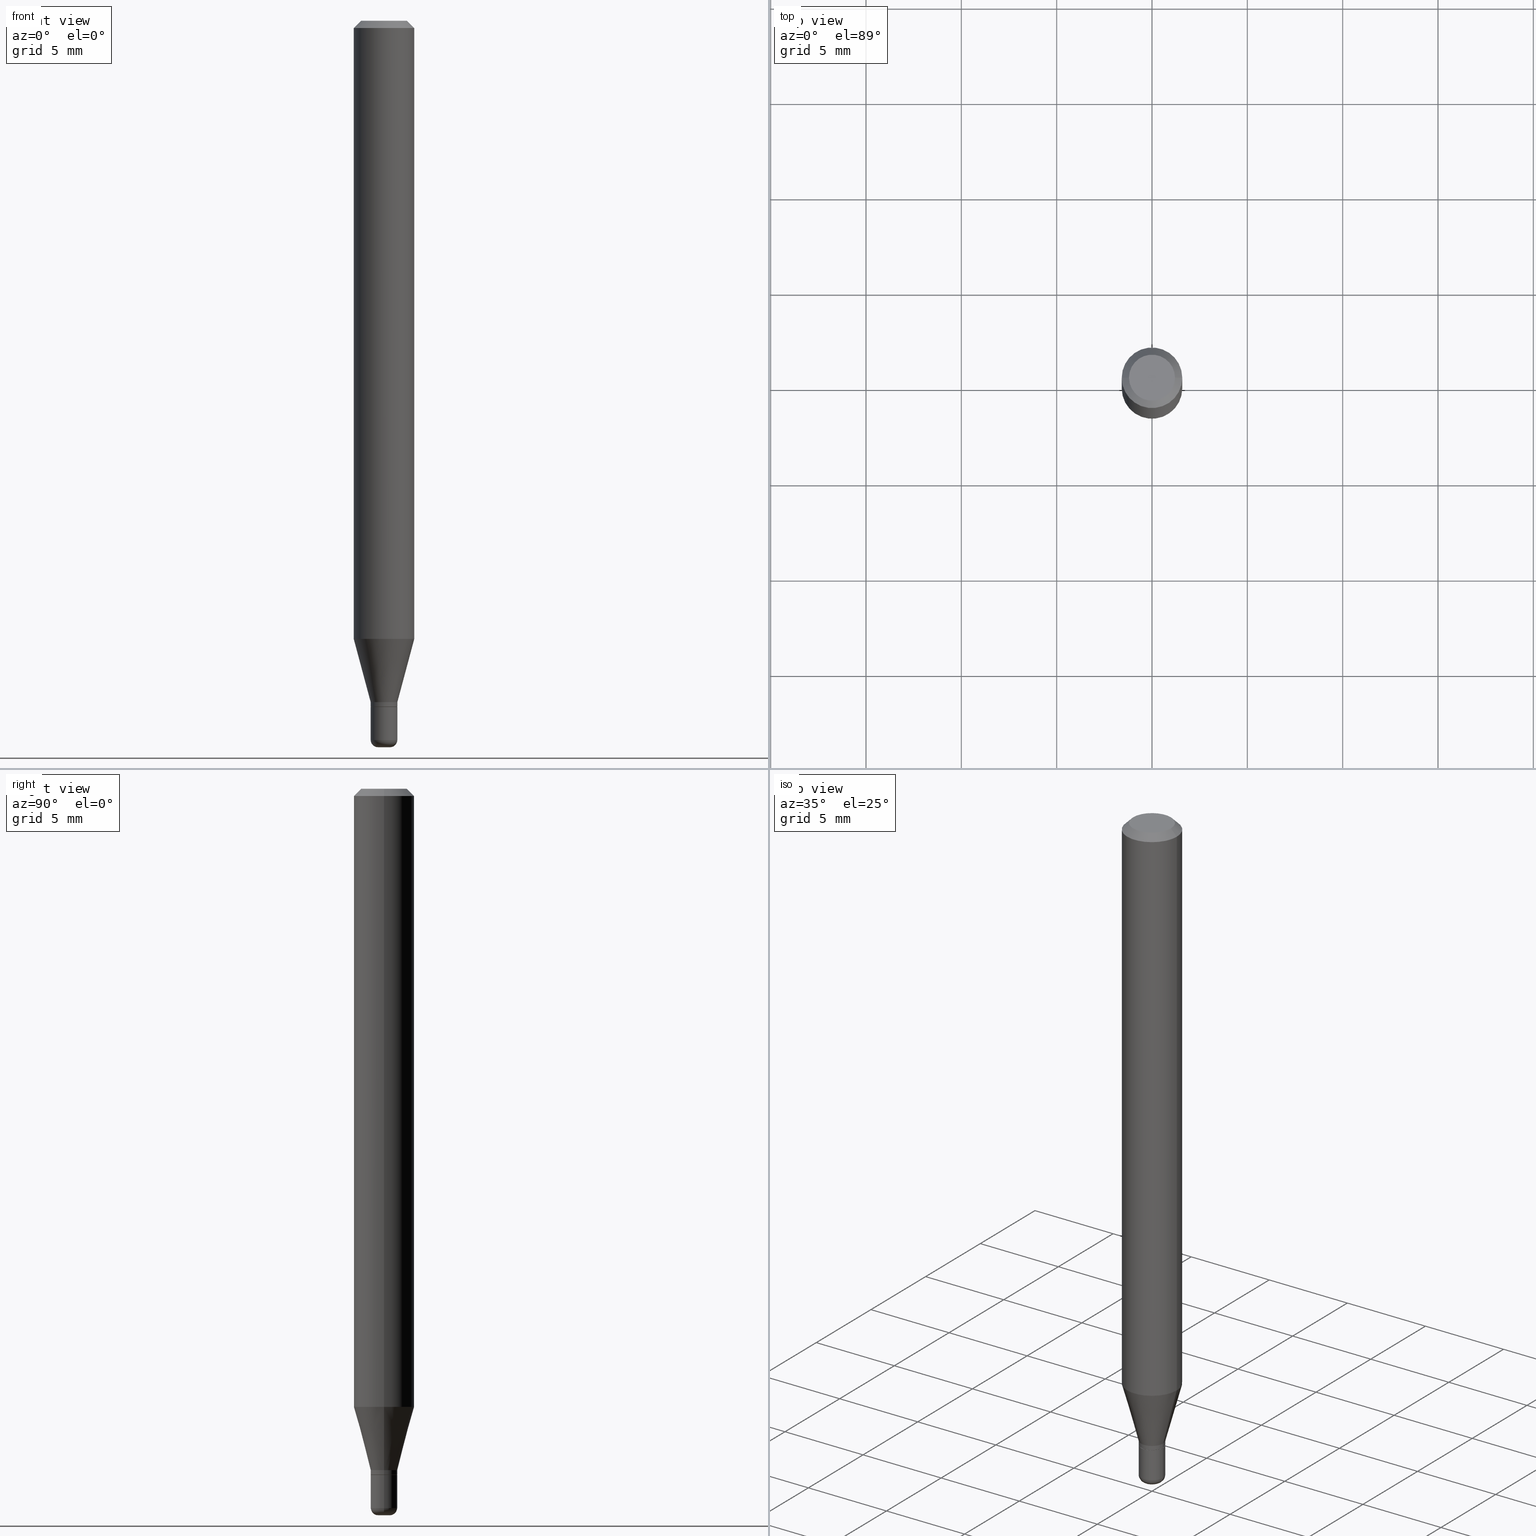
[diagram: canonical four-view strip — front | top / right | iso, engineering-drawing reading convention]
A machine part, canonical four-view strip (front | top / right | iso — engineering-drawing reading convention). The complete STEP part file that produces these views, byte-faithful:
ISO-10303-21;
HEADER;
FILE_DESCRIPTION (( 'STEP AP203' ),
    '1' );
FILE_NAME ('09016.STEP',
    '2024-02-29T21:18:31',
    ( '' ),
    ( '' ),
    'SwSTEP 2.0',
    'SolidWorks 2023',
    '' );
FILE_SCHEMA (( 'CONFIG_CONTROL_DESIGN' ));
ENDSEC;

DATA;
#1 = DIRECTION ( 'NONE',  ( -1.000000000000000000, 6.982962677686266711E-15, 0.000000000000000000 ) ) ;
#2 =( NAMED_UNIT ( * ) SI_UNIT ( $, .STERADIAN. ) SOLID_ANGLE_UNIT ( ) );
#3 = CC_DESIGN_DATE_AND_TIME_ASSIGNMENT ( #13, #175, ( #245 ) ) ;
#4 = FACE_OUTER_BOUND ( 'NONE', #291, .T. ) ;
#5 = CLOSED_SHELL ( 'NONE', ( #335, #90, #210, #117, #183, #457, #252, #28, #133, #385, #142, #111 ) ) ;
#6 = VECTOR ( 'NONE', #182, 39.37007874015748143 ) ;
#7 = APPROVAL_PERSON_ORGANIZATION ( #377, #65, #17 ) ;
#8 = CARTESIAN_POINT ( 'NONE',  ( 3.464006563961245725E-29, -4.945683316471316037E-15, -1.416500000000000092 ) ) ;
#9 = DIRECTION ( 'NONE',  ( 1.000000000000000000, -6.982962677686280121E-15, 0.000000000000000000 ) ) ;
#10 = ADVANCED_FACE ( 'NONE', ( #387 ), #121, .T. ) ;
#11 = ORIENTED_EDGE ( 'NONE', *, *, #514, .F. ) ;
#12 = DIRECTION ( 'NONE',  ( -2.445468806185136597E-29, 3.491481338843145583E-15, 1.000000000000000000 ) ) ;
#13 = DATE_AND_TIME ( #143, #128 ) ;
#14 = VERTEX_POINT ( 'NONE', #147 ) ;
#15 = CC_DESIGN_DATE_AND_TIME_ASSIGNMENT ( #490, #386, ( #63 ) ) ;
#16 = DIRECTION ( 'NONE',  ( -2.445468806185136877E-29, 3.491481338843145188E-15, 1.000000000000000000 ) ) ;
#17 = APPROVAL_ROLE ( '' ) ;
#18 = ORIENTED_EDGE ( 'NONE', *, *, #283, .F. ) ;
#19 = EDGE_CURVE ( 'NONE', #446, #289, #71, .T. ) ;
#20 = DIRECTION ( 'NONE',  ( -2.445468806185136597E-29, 3.491481338843145583E-15, 1.000000000000000000 ) ) ;
#21 = APPROVAL_DATE_TIME ( #493, #65 ) ;
#22 = FACE_OUTER_BOUND ( 'NONE', #485, .T. ) ;
#23 = ORIENTED_EDGE ( 'NONE', *, *, #517, .F. ) ;
#24 = AXIS2_PLACEMENT_3D ( 'NONE', #77, #268, #233 ) ;
#25 = FACE_OUTER_BOUND ( 'NONE', #139, .T. ) ;
#26 = APPROVAL_STATUS ( 'not_yet_approved' ) ;
#27 = EDGE_LOOP ( 'NONE', ( #506, #259, #58, #23 ) ) ;
#28 = ADVANCED_FACE ( 'NONE', ( #349 ), #499, .T. ) ;
#29 = ORIENTED_EDGE ( 'NONE', *, *, #19, .T. ) ;
#30 = ORIENTED_EDGE ( 'NONE', *, *, #33, .T. ) ;
#31 = DIRECTION ( 'NONE',  ( 1.000000000000000000, -6.982962677686262766E-15, 0.000000000000000000 ) ) ;
#32 = AXIS2_PLACEMENT_3D ( 'NONE', #382, #459, #250 ) ;
#33 = EDGE_CURVE ( 'NONE', #221, #96, #202, .T. ) ;
#34 = CARTESIAN_POINT ( 'NONE',  ( -0.01250000000000000069, -5.096031946212059284E-15, -1.485000000000000098 ) ) ;
#35 = DIRECTION ( 'NONE',  ( 2.445468806185136597E-29, -3.491481338843145583E-15, -1.000000000000000000 ) ) ;
#36 = CONICAL_SURFACE ( 'NONE', #113, 0.02699999999999999623, 0.7853981633972775267 ) ;
#37 = FACE_OUTER_BOUND ( 'NONE', #79, .T. ) ;
#38 = VERTEX_POINT ( 'NONE', #162 ) ;
#39 = DIRECTION ( 'NONE',  ( -2.445468806185136597E-29, 3.491481338843145583E-15, 1.000000000000000000 ) ) ;
#40 = CARTESIAN_POINT ( 'NONE',  ( 3.440774610302487541E-29, -4.912514243752305891E-15, -1.407000000000000028 ) ) ;
#41 = DIRECTION ( 'NONE',  ( -2.445468806185136597E-29, 3.491481338843145583E-15, 1.000000000000000000 ) ) ;
#42 = VECTOR ( 'NONE', #296, 39.37007874015748143 ) ;
#43 = DIRECTION ( 'NONE',  ( -2.445468806185136597E-29, 3.491481338843145583E-15, 1.000000000000000000 ) ) ;
#44 = EDGE_CURVE ( 'NONE', #38, #144, #62, .T. ) ;
#45 = CARTESIAN_POINT ( 'NONE',  ( 3.668203209277632395E-31, -5.237222008264614861E-17, -0.01499999999999970281 ) ) ;
#46 = LENGTH_MEASURE_WITH_UNIT ( LENGTH_MEASURE( 0.02539999999999999897 ), #201 );
#47 = CARTESIAN_POINT ( 'NONE',  ( -0.02750000000000000014, -4.870740170327377186E-15, -1.417000000000000259 ) ) ;
#48 = CARTESIAN_POINT ( 'NONE',  ( 0.02699999999999999623, -5.135969049438267025E-15, -1.417000000000000259 ) ) ;
#49 = ORIENTED_EDGE ( 'NONE', *, *, #44, .F. ) ;
#50 = PLANE ( 'NONE',  #330 ) ;
#51 = EDGE_CURVE ( 'NONE', #491, #289, #61, .T. ) ;
#52 = CIRCLE ( 'NONE', #138, 0.06250000000000000000 ) ;
#53 = ORIENTED_EDGE ( 'NONE', *, *, #306, .T. ) ;
#54 = CARTESIAN_POINT ( 'NONE',  ( 0.02749999999999999667, -1.920314736363722951E-16, 1.340948613343882063E-30 ) ) ;
#55 = CALENDAR_DATE ( 2024, 29, 2 ) ;
#56 = ORIENTED_EDGE ( 'NONE', *, *, #284, .F. ) ;
#57 = DIRECTION ( 'NONE',  ( 1.000000000000000000, -6.982962677686265922E-15, 4.876176775795935232E-29 ) ) ;
#58 = ORIENTED_EDGE ( 'NONE', *, *, #44, .T. ) ;
#59 = LINE ( 'NONE', #384, #251 ) ;
#60 = PERSON_AND_ORGANIZATION_ROLE ( 'creator' ) ;
#61 = LINE ( 'NONE', #224, #430 ) ;
#62 = CIRCLE ( 'NONE', #285, 0.01499999999999998730 ) ;
#63 = SECURITY_CLASSIFICATION ( '', '', #505 ) ;
#64 = EDGE_CURVE ( 'NONE', #261, #511, #203, .T. ) ;
#65 = APPROVAL ( #26, 'UNSPECIFIED' ) ;
#66 = ORIENTED_EDGE ( 'NONE', *, *, #359, .F. ) ;
#67 = PERSON ( 'UNSPECIFIED', 'UNSPECIFIED', 'UNSPECIFIED', ('UNSPECIFIED'), ('UNSPECIFIED'), ('UNSPECIFIED') ) ;
#68 = CC_DESIGN_PERSON_AND_ORGANIZATION_ASSIGNMENT ( #380, #180, ( #510 ) ) ;
#69 = ORIENTED_EDGE ( 'NONE', *, *, #51, .T. ) ;
#70 = DIRECTION ( 'NONE',  ( 1.000000000000000000, -6.982962677686265922E-15, 4.876176775795935793E-29 ) ) ;
#71 = CIRCLE ( 'NONE', #415, 0.06250000000000000000 ) ;
#72 = TOROIDAL_SURFACE ( 'NONE', #509, 0.01250000000000000069, 0.01499999999999998557 ) ;
#73 = AXIS2_PLACEMENT_3D ( 'NONE', #278, #482, #328 ) ;
#74 = DIRECTION ( 'NONE',  ( -2.445468806185136597E-29, 3.491481338843145583E-15, 1.000000000000000000 ) ) ;
#75 = DIRECTION ( 'NONE',  ( 1.000000000000000000, -6.982962677686277755E-15, 0.000000000000000000 ) ) ;
#76 = DIRECTION ( 'NONE',  ( 1.000000000000000000, -6.982962677686266711E-15, 0.000000000000000000 ) ) ;
#77 = CARTESIAN_POINT ( 'NONE',  ( 3.465229298364339647E-29, -4.947429057140738329E-15, -1.417000000000000259 ) ) ;
#78 = CIRCLE ( 'NONE', #32, 0.02749999999999998973 ) ;
#79 = EDGE_LOOP ( 'NONE', ( #253, #120 ) ) ;
#80 = AXIS2_PLACEMENT_3D ( 'NONE', #130, #12, #172 ) ;
#81 = AXIS2_PLACEMENT_3D ( 'NONE', #508, #110, #309 ) ;
#82 = DIRECTION ( 'NONE',  ( 0.2588190451025211281, 1.565188264969622954E-15, 0.9659258262890679791 ) ) ;
#83 = DIRECTION ( 'NONE',  ( -1.000000000000000000, 6.982962677686265922E-15, -4.876176775795935793E-29 ) ) ;
#84 = CARTESIAN_POINT ( 'NONE',  ( 3.631521177184928138E-29, -5.184849788182071492E-15, -1.485000000000000098 ) ) ;
#85 = DIRECTION ( 'NONE',  ( 1.000000000000000000, -6.982962677686261977E-15, 0.000000000000000000 ) ) ;
#86 = DIRECTION ( 'NONE',  ( 1.000000000000000000, -6.982962677686291165E-15, 0.000000000000000000 ) ) ;
#87 = EDGE_CURVE ( 'NONE', #511, #261, #165, .T. ) ;
#88 = DIRECTION ( 'NONE',  ( -2.445468806185136597E-29, 3.491481338843145583E-15, 1.000000000000000000 ) ) ;
#89 = AXIS2_PLACEMENT_3D ( 'NONE', #286, #400, #322 ) ;
#90 = ADVANCED_FACE ( 'NONE', ( #442 ), #36, .T. ) ;
#91 = CARTESIAN_POINT ( 'NONE',  ( 3.465229298364339647E-29, -4.947429057140738329E-15, -1.417000000000000259 ) ) ;
#92 = DIRECTION ( 'NONE',  ( 1.000000000000000000, -6.982962677686282488E-15, 0.000000000000000000 ) ) ;
#93 = ORIENTED_EDGE ( 'NONE', *, *, #319, .F. ) ;
#94 = DIMENSIONAL_EXPONENTS ( 1.000000000000000000, 0.000000000000000000, 0.000000000000000000, 0.000000000000000000, 0.000000000000000000, 0.000000000000000000, 0.000000000000000000 ) ;
#95 = CARTESIAN_POINT ( 'NONE',  ( 3.465229298364339647E-29, -4.947429057140738329E-15, -1.417000000000000259 ) ) ;
#96 = VERTEX_POINT ( 'NONE', #47 ) ;
#97 = CARTESIAN_POINT ( 'NONE',  ( 3.464006563961245725E-29, -4.945683316471316037E-15, -1.416500000000000092 ) ) ;
#98 = AXIS2_PLACEMENT_3D ( 'NONE', #266, #357, #313 ) ;
#99 = EDGE_LOOP ( 'NONE', ( #350, #302, #410, #353 ) ) ;
#100 = DIRECTION ( 'NONE',  ( -2.438088387897960049E-29, 3.491481338843145188E-15, 1.000000000000000000 ) ) ;
#101 = PERSON_AND_ORGANIZATION ( #67, #229 ) ;
#102 = VERTEX_POINT ( 'NONE', #375 ) ;
#103 = CC_DESIGN_PERSON_AND_ORGANIZATION_ASSIGNMENT ( #340, #137, ( #63 ) ) ;
#104 = CARTESIAN_POINT ( 'NONE',  ( -0.02749999999999999667, 1.953992523340275274E-16, -1.352707149820099006E-30 ) ) ;
#105 = ORIENTED_EDGE ( 'NONE', *, *, #359, .T. ) ;
#106 = EDGE_CURVE ( 'NONE', #273, #446, #177, .T. ) ;
#107 = ORIENTED_EDGE ( 'NONE', *, *, #462, .T. ) ;
#108 = CIRCLE ( 'NONE', #465, 0.01250000000000000590 ) ;
#109 = ORIENTED_EDGE ( 'NONE', *, *, #158, .F. ) ;
#110 = DIRECTION ( 'NONE',  ( -2.445468806185136597E-29, 3.491481338843145583E-15, 1.000000000000000000 ) ) ;
#111 = ADVANCED_FACE ( 'NONE', ( #492 ), #279, .T. ) ;
#112 = DIRECTION ( 'NONE',  ( -2.445468806185136597E-29, 3.491481338843145583E-15, 1.000000000000000000 ) ) ;
#113 = AXIS2_PLACEMENT_3D ( 'NONE', #336, #362, #444 ) ;
#114 = CARTESIAN_POINT ( 'NONE',  ( 3.440774610302487541E-29, -4.912514243752305891E-15, -1.407000000000000028 ) ) ;
#115 = ORIENTED_EDGE ( 'NONE', *, *, #486, .F. ) ;
#116 = PLANE ( 'NONE',  #364 ) ;
#117 = ADVANCED_FACE ( 'NONE', ( #4 ), #412, .T. ) ;
#118 = FACE_OUTER_BOUND ( 'NONE', #236, .T. ) ;
#119 = CC_DESIGN_PERSON_AND_ORGANIZATION_ASSIGNMENT ( #288, #445, ( #134 ) ) ;
#120 = ORIENTED_EDGE ( 'NONE', *, *, #64, .F. ) ;
#121 = TOROIDAL_SURFACE ( 'NONE', #351, 0.01250000000000000069, 0.01499999999999998557 ) ;
#122 = AXIS2_PLACEMENT_3D ( 'NONE', #45, #238, #371 ) ;
#123 = DIRECTION ( 'NONE',  ( -6.982962677686266711E-15, -1.000000000000000000, 3.491481338843145583E-15 ) ) ;
#124 = DIRECTION ( 'NONE',  ( -0.7071067811865479058, 2.468850131082261005E-15, -0.7071067811865471286 ) ) ;
#125 = DIRECTION ( 'NONE',  ( -2.445468806185136597E-29, 3.491481338843145583E-15, 1.000000000000000000 ) ) ;
#126 = CARTESIAN_POINT ( 'NONE',  ( -6.680649051745406845E-45, 9.538196290434862081E-31, 2.731847993664263218E-16 ) ) ;
#127 = AXIS2_PLACEMENT_3D ( 'NONE', #242, #200, #367 ) ;
#128 = LOCAL_TIME ( 16, 18, 31.00000000000000000, #344 ) ;
#129 = ORIENTED_EDGE ( 'NONE', *, *, #243, .F. ) ;
#130 = CARTESIAN_POINT ( 'NONE',  ( 0.000000000000000000, 0.000000000000000000, 0.000000000000000000 ) ) ;
#131 = ORIENTED_EDGE ( 'NONE', *, *, #347, .T. ) ;
#132 = CARTESIAN_POINT ( 'NONE',  ( 0.000000000000000000, 0.000000000000000000, 0.000000000000000000 ) ) ;
#133 = ADVANCED_FACE ( 'NONE', ( #209 ), #50, .F. ) ;
#134 = PRODUCT ( '09016', '09016', '', ( #282 ) ) ;
#135 = ORIENTED_EDGE ( 'NONE', *, *, #284, .T. ) ;
#136 = CARTESIAN_POINT ( 'NONE',  ( 0.06250000000000000000, -4.888073874380378612E-16, -0.01499999999999970281 ) ) ;
#137 = PERSON_AND_ORGANIZATION_ROLE ( 'classification_officer' ) ;
#138 = AXIS2_PLACEMENT_3D ( 'NONE', #228, #112, #31 ) ;
#139 = EDGE_LOOP ( 'NONE', ( #11, #477, #135, #190 ) ) ;
#140 = APPROVAL_PERSON_ORGANIZATION ( #101, #263, #301 ) ;
#141 = DIRECTION ( 'NONE',  ( 1.000000000000000000, -6.982962677686277755E-15, 0.000000000000000000 ) ) ;
#142 = ADVANCED_FACE ( 'NONE', ( #281 ), #241, .T. ) ;
#143 = CALENDAR_DATE ( 2024, 29, 2 ) ;
#144 = VERTEX_POINT ( 'NONE', #204 ) ;
#145 = CARTESIAN_POINT ( 'NONE',  ( 0.06250000000000000000, -4.364351673553916694E-16, 3.047610484872459871E-30 ) ) ;
#146 = CALENDAR_DATE ( 2024, 29, 2 ) ;
#147 = CARTESIAN_POINT ( 'NONE',  ( 0.02749999999999999667, -5.137714790107688529E-15, -1.416500000000000092 ) ) ;
#148 = FACE_OUTER_BOUND ( 'NONE', #428, .T. ) ;
#149 = VECTOR ( 'NONE', #369, 39.37007874015748143 ) ;
#150 = ADVANCED_FACE ( 'NONE', ( #480 ), #327, .F. ) ;
#151 = CC_DESIGN_SECURITY_CLASSIFICATION ( #63, ( #510 ) ) ;
#152 = DIRECTION ( 'NONE',  ( 1.000000000000000000, -6.982962677686282488E-15, 4.883557194083118506E-29 ) ) ;
#153 = LINE ( 'NONE', #474, #443 ) ;
#154 = CARTESIAN_POINT ( 'NONE',  ( -0.02750000000000000014, 1.953992523340275521E-16, -1.352707149820099181E-30 ) ) ;
#155 = MANIFOLD_SOLID_BREP ( 'Body-Move/Copy2[1]', #454 ) ;
#156 = AXIS2_PLACEMENT_3D ( 'NONE', #97, #20, #495 ) ;
#157 = CIRCLE ( 'NONE', #81, 0.04750000000000000749 ) ;
#158 = EDGE_CURVE ( 'NONE', #434, #341, #356, .T. ) ;
#159 = FACE_OUTER_BOUND ( 'NONE', #27, .T. ) ;
#160 = EDGE_LOOP ( 'NONE', ( #199, #502, #399, #225 ) ) ;
#161 = APPROVAL ( #348, 'UNSPECIFIED' ) ;
#162 = CARTESIAN_POINT ( 'NONE',  ( 0.01250000000000000590, -5.324509041735797299E-15, -1.500000000000000222 ) ) ;
#163 = APPLICATION_PROTOCOL_DEFINITION ( 'international standard', 'config_control_design', 1994, #193 ) ;
#164 = EDGE_CURVE ( 'NONE', #388, #14, #267, .T. ) ;
#165 = CIRCLE ( 'NONE', #425, 0.02699999999999999623 ) ;
#166 = DIRECTION ( 'NONE',  ( 1.000000000000000000, -6.982962677686266711E-15, 4.876176775795935793E-29 ) ) ;
#167 = AXIS2_PLACEMENT_3D ( 'NONE', #34, #269, #515 ) ;
#168 = DIRECTION ( 'NONE',  ( -2.445468806185136597E-29, 3.491481338843145583E-15, 1.000000000000000000 ) ) ;
#169 = DIRECTION ( 'NONE',  ( -2.445468806185136597E-29, 3.491481338843145583E-15, 1.000000000000000000 ) ) ;
#170 = DIRECTION ( 'NONE',  ( -2.445468806185136597E-29, 3.491481338843145583E-15, 1.000000000000000000 ) ) ;
#171 = EDGE_LOOP ( 'NONE', ( #30, #494 ) ) ;
#172 = DIRECTION ( 'NONE',  ( 1.000000000000000000, -6.982962677686266711E-15, 4.876176775795935793E-29 ) ) ;
#173 = VECTOR ( 'NONE', #423, 39.37007874015748143 ) ;
#174 = CONICAL_SURFACE ( 'NONE', #298, 0.02750000000000000708, 0.2617993877991498519 ) ;
#175 = DATE_TIME_ROLE ( 'creation_date' ) ;
#176 = ORIENTED_EDGE ( 'NONE', *, *, #243, .T. ) ;
#177 = LINE ( 'NONE', #247, #213 ) ;
#178 = ORIENTED_EDGE ( 'NONE', *, *, #64, .T. ) ;
#179 = CARTESIAN_POINT ( 'NONE',  ( 0.000000000000000000, 0.000000000000000000, 0.000000000000000000 ) ) ;
#180 = PERSON_AND_ORGANIZATION_ROLE ( 'design_supplier' ) ;
#181 = ORIENTED_EDGE ( 'NONE', *, *, #347, .F. ) ;
#182 = DIRECTION ( 'NONE',  ( -2.445468806185136877E-29, 3.491481338843145188E-15, 1.000000000000000000 ) ) ;
#183 = ADVANCED_FACE ( 'NONE', ( #406 ), #392, .T. ) ;
#184 = AXIS2_PLACEMENT_3D ( 'NONE', #239, #481, #290 ) ;
#185 = ORIENTED_EDGE ( 'NONE', *, *, #231, .T. ) ;
#186 = VECTOR ( 'NONE', #360, 39.37007874015748143 ) ;
#187 = CYLINDRICAL_SURFACE ( 'NONE', #234, 0.06250000000000000000 ) ;
#188 = PERSON_AND_ORGANIZATION ( #67, #229 ) ;
#189 = DIRECTION ( 'NONE',  ( 0.7071067811865479058, -7.319954787623257623E-15, -0.7071067811865471286 ) ) ;
#190 = ORIENTED_EDGE ( 'NONE', *, *, #19, .F. ) ;
#191 = EDGE_LOOP ( 'NONE', ( #232, #185 ) ) ;
#192 = AXIS2_PLACEMENT_3D ( 'NONE', #437, #170, #407 ) ;
#193 = APPLICATION_CONTEXT ( 'configuration controlled 3d designs of mechanical parts and assemblies' ) ;
#194 = EDGE_CURVE ( 'NONE', #14, #434, #212, .T. ) ;
#195 = AXIS2_PLACEMENT_3D ( 'NONE', #358, #518, #435 ) ;
#196 = AXIS2_PLACEMENT_3D ( 'NONE', #95, #441, #85 ) ;
#197 = ORIENTED_EDGE ( 'NONE', *, *, #496, .F. ) ;
#198 = CARTESIAN_POINT ( 'NONE',  ( 3.668203209277704895E-29, -5.237222008264718177E-15, -1.500000000000000222 ) ) ;
#199 = ORIENTED_EDGE ( 'NONE', *, *, #158, .T. ) ;
#200 = DIRECTION ( 'NONE',  ( -2.445468806185136597E-29, 3.491481338843145583E-15, 1.000000000000000000 ) ) ;
#201 =( LENGTH_UNIT ( ) NAMED_UNIT ( * ) SI_UNIT ( $, .METRE. ) );
#202 = CIRCLE ( 'NONE', #195, 0.02750000000000000014 ) ;
#203 = CIRCLE ( 'NONE', #89, 0.02699999999999999623 ) ;
#204 = CARTESIAN_POINT ( 'NONE',  ( 0.02749999999999998973, -5.376881261818443984E-15, -1.485000000000000098 ) ) ;
#205 = LOCAL_TIME ( 16, 18, 31.00000000000000000, #249 ) ;
#206 =( NAMED_UNIT ( * ) PLANE_ANGLE_UNIT ( ) SI_UNIT ( $, .RADIAN. ) );
#207 = FACE_OUTER_BOUND ( 'NONE', #334, .T. ) ;
#208 = ORIENTED_EDGE ( 'NONE', *, *, #473, .F. ) ;
#209 = FACE_OUTER_BOUND ( 'NONE', #191, .T. ) ;
#210 = ADVANCED_FACE ( 'NONE', ( #408 ), #260, .T. ) ;
#211 = ORIENTED_EDGE ( 'NONE', *, *, #312, .T. ) ;
#212 = LINE ( 'NONE', #402, #500 ) ;
#213 = VECTOR ( 'NONE', #124, 39.37007874015748143 ) ;
#214 = ORIENTED_EDGE ( 'NONE', *, *, #439, .T. ) ;
#215 = PLANE ( 'NONE',  #373 ) ;
#216 = APPLICATION_CONTEXT ( 'configuration controlled 3d designs of mechanical parts and assemblies' ) ;
#217 = APPROVAL_DATE_TIME ( #333, #263 ) ;
#218 = ORIENTED_EDGE ( 'NONE', *, *, #366, .T. ) ;
#219 = ADVANCED_FACE ( 'NONE', ( #207 ), #368, .T. ) ;
#220 = CARTESIAN_POINT ( 'NONE',  ( 3.440774610302487541E-29, -4.912514243752305891E-15, -1.407000000000000028 ) ) ;
#221 = VERTEX_POINT ( 'NONE', #483 ) ;
#222 = CARTESIAN_POINT ( 'NONE',  ( 0.000000000000000000, 0.000000000000000000, 0.000000000000000000 ) ) ;
#223 = CALENDAR_DATE ( 2024, 29, 2 ) ;
#224 = CARTESIAN_POINT ( 'NONE',  ( 0.06250000000000000000, -4.811533449433669144E-16, -0.01499999999999970281 ) ) ;
#225 = ORIENTED_EDGE ( 'NONE', *, *, #462, .F. ) ;
#226 = ORIENTED_EDGE ( 'NONE', *, *, #319, .T. ) ;
#227 = CC_DESIGN_PERSON_AND_ORGANIZATION_ASSIGNMENT ( #460, #60, ( #510 ) ) ;
#228 = CARTESIAN_POINT ( 'NONE',  ( 3.121343126147216904E-29, -4.456450742493864567E-15, -1.276378221735089635 ) ) ;
#229 = ORGANIZATION ( 'UNSPECIFIED', 'UNSPECIFIED', '' ) ;
#230 = DIRECTION ( 'NONE',  ( 1.000000000000000000, -6.982962677686291165E-15, 0.000000000000000000 ) ) ;
#231 = EDGE_CURVE ( 'NONE', #491, #273, #487, .T. ) ;
#232 = ORIENTED_EDGE ( 'NONE', *, *, #447, .T. ) ;
#233 = DIRECTION ( 'NONE',  ( 1.000000000000000000, -6.982962677686279332E-15, 0.000000000000000000 ) ) ;
#234 = AXIS2_PLACEMENT_3D ( 'NONE', #222, #456, #292 ) ;
#235 = CC_DESIGN_APPROVAL ( #65, ( #245 ) ) ;
#236 = EDGE_LOOP ( 'NONE', ( #53, #105, #109, #498 ) ) ;
#237 = EDGE_CURVE ( 'NONE', #341, #329, #59, .T. ) ;
#238 = DIRECTION ( 'NONE',  ( 2.445468806185136597E-29, -3.491481338843145583E-15, -1.000000000000000000 ) ) ;
#239 = CARTESIAN_POINT ( 'NONE',  ( 1.920314736364070050E-16, 0.02749999999999505271, -1.417000000000000259 ) ) ;
#240 = LINE ( 'NONE', #403, #186 ) ;
#241 = CONICAL_SURFACE ( 'NONE', #196, 0.02699999999999999623, 0.7853981633972775267 ) ;
#242 = CARTESIAN_POINT ( 'NONE',  ( 3.440774610302487541E-29, -4.912514243752305891E-15, -1.407000000000000028 ) ) ;
#243 = EDGE_CURVE ( 'NONE', #341, #434, #374, .T. ) ;
#244 = CARTESIAN_POINT ( 'NONE',  ( 0.000000000000000000, 0.000000000000000000, 0.000000000000000000 ) ) ;
#245 = PRODUCT_DEFINITION ( 'UNKNOWN', '', #510, #311 ) ;
#246 = ORIENTED_EDGE ( 'NONE', *, *, #231, .F. ) ;
#247 = CARTESIAN_POINT ( 'NONE',  ( -0.06250000000000000000, 3.840629472727455270E-16, -0.01499999999999970281 ) ) ;
#248 = PRODUCT_RELATED_PRODUCT_CATEGORY ( 'detail', '', ( #134 ) ) ;
#249 = COORDINATED_UNIVERSAL_TIME_OFFSET ( 5, 0, .BEHIND. ) ;
#250 = DIRECTION ( 'NONE',  ( 1.000000000000000000, -6.982962677686282488E-15, 0.000000000000000000 ) ) ;
#251 = VECTOR ( 'NONE', #257, 39.37007874015748854 ) ;
#252 = ADVANCED_FACE ( 'NONE', ( #25 ), #187, .T. ) ;
#253 = ORIENTED_EDGE ( 'NONE', *, *, #87, .F. ) ;
#254 = FACE_OUTER_BOUND ( 'NONE', #370, .T. ) ;
#255 = DIRECTION ( 'NONE',  ( 1.000000000000000000, -6.982962677686265922E-15, 4.876176775795935793E-29 ) ) ;
#256 = ORIENTED_EDGE ( 'NONE', *, *, #237, .F. ) ;
#257 = DIRECTION ( 'NONE',  ( -0.2588190451025211281, 5.211531920934547886E-15, 0.9659258262890679791 ) ) ;
#258 = CALENDAR_DATE ( 2024, 29, 2 ) ;
#259 = ORIENTED_EDGE ( 'NONE', *, *, #433, .T. ) ;
#260 = CONICAL_SURFACE ( 'NONE', #122, 0.06250000000000000000, 0.7853981633974488341 ) ;
#261 = VERTEX_POINT ( 'NONE', #303 ) ;
#262 = CIRCLE ( 'NONE', #192, 0.06250000000000000000 ) ;
#263 = APPROVAL ( #421, 'UNSPECIFIED' ) ;
#264 = ORIENTED_EDGE ( 'NONE', *, *, #33, .F. ) ;
#265 = CARTESIAN_POINT ( 'NONE',  ( -0.02749999999999998973, -4.870740170327377186E-15, -1.485000000000000098 ) ) ;
#266 = CARTESIAN_POINT ( 'NONE',  ( 3.668203209277632395E-31, -5.237222008264614861E-17, -0.01499999999999970281 ) ) ;
#267 = CIRCLE ( 'NONE', #455, 0.02749999999999999667 ) ;
#268 = DIRECTION ( 'NONE',  ( -2.445468806185136597E-29, 3.491481338843145583E-15, 1.000000000000000000 ) ) ;
#269 = DIRECTION ( 'NONE',  ( 7.105427357601001859E-15, 1.000000000000000000, -3.491481338843145583E-15 ) ) ;
#270 = DIRECTION ( 'NONE',  ( -2.445468806185136597E-29, 3.491481338843145583E-15, 1.000000000000000000 ) ) ;
#271 = DIRECTION ( 'NONE',  ( 1.000000000000000000, -6.982962677686266711E-15, 4.876176775795935793E-29 ) ) ;
#272 = UNCERTAINTY_MEASURE_WITH_UNIT (LENGTH_MEASURE( 1.000000000000000082E-05 ), #325, 'distance_accuracy_value', 'NONE');
#273 = VERTEX_POINT ( 'NONE', #379 ) ;
#274 = LINE ( 'NONE', #363, #405 ) ;
#275 = VECTOR ( 'NONE', #475, 39.37007874015748143 ) ;
#276 = APPROVAL_PERSON_ORGANIZATION ( #188, #161, #450 ) ;
#277 = DIRECTION ( 'NONE',  ( 1.000000000000000000, -6.982962677686273810E-15, 0.000000000000000000 ) ) ;
#278 = CARTESIAN_POINT ( 'NONE',  ( 0.000000000000000000, 0.000000000000000000, 0.000000000000000000 ) ) ;
#279 = CYLINDRICAL_SURFACE ( 'NONE', #80, 0.02750000000000000014 ) ;
#280 = CARTESIAN_POINT ( 'NONE',  ( -0.02699999999999999623, -4.755582518485511109E-15, -1.417000000000000259 ) ) ;
#281 = FACE_OUTER_BOUND ( 'NONE', #310, .T. ) ;
#282 = MECHANICAL_CONTEXT ( 'NONE', #193, 'mechanical' ) ;
#283 = EDGE_CURVE ( 'NONE', #458, #96, #346, .T. ) ;
#284 = EDGE_CURVE ( 'NONE', #102, #289, #339, .T. ) ;
#285 = AXIS2_PLACEMENT_3D ( 'NONE', #320, #123, #277 ) ;
#286 = CARTESIAN_POINT ( 'NONE',  ( 3.465229298364339647E-29, -4.947429057140738329E-15, -1.417000000000000259 ) ) ;
#287 =( GEOMETRIC_REPRESENTATION_CONTEXT ( 3 ) GLOBAL_UNCERTAINTY_ASSIGNED_CONTEXT ( ( #272 ) ) GLOBAL_UNIT_ASSIGNED_CONTEXT ( ( #325, #206, #2 ) ) REPRESENTATION_CONTEXT ( 'NONE', 'WORKASPACE' ) );
#288 = PERSON_AND_ORGANIZATION ( #67, #229 ) ;
#289 = VERTEX_POINT ( 'NONE', #136 ) ;
#290 = DIRECTION ( 'NONE',  ( -1.000000000000000000, 6.982962677686265922E-15, -4.876176775795935793E-29 ) ) ;
#291 = EDGE_LOOP ( 'NONE', ( #361, #469, #181, #56 ) ) ;
#292 = DIRECTION ( 'NONE',  ( 1.000000000000000000, -6.982962677686266711E-15, 4.876176775795935793E-29 ) ) ;
#293 = ADVANCED_FACE ( 'NONE', ( #254 ), #452, .T. ) ;
#294 = COORDINATED_UNIVERSAL_TIME_OFFSET ( 5, 0, .BEHIND. ) ;
#295 = ORIENTED_EDGE ( 'NONE', *, *, #283, .T. ) ;
#296 = DIRECTION ( 'NONE',  ( -2.445468806185136877E-29, 3.491481338843145188E-15, 1.000000000000000000 ) ) ;
#297 = AXIS2_PLACEMENT_3D ( 'NONE', #179, #420, #57 ) ;
#298 = AXIS2_PLACEMENT_3D ( 'NONE', #114, #432, #75 ) ;
#299 = COORDINATED_UNIVERSAL_TIME_OFFSET ( 5, 0, .BEHIND. ) ;
#300 = DIRECTION ( 'NONE',  ( -2.445468806185136597E-29, 3.491481338843145583E-15, 1.000000000000000000 ) ) ;
#301 = APPROVAL_ROLE ( '' ) ;
#302 = ORIENTED_EDGE ( 'NONE', *, *, #486, .T. ) ;
#303 = CARTESIAN_POINT ( 'NONE',  ( -0.02699999999999999623, -4.752933291311399907E-15, -1.417000000000000259 ) ) ;
#304 = APPROVAL_DATE_TIME ( #413, #161 ) ;
#305 = ORIENTED_EDGE ( 'NONE', *, *, #194, .T. ) ;
#306 = EDGE_CURVE ( 'NONE', #14, #388, #404, .T. ) ;
#307 = ORIENTED_EDGE ( 'NONE', *, *, #447, .F. ) ;
#308 = LOCAL_TIME ( 16, 18, 31.00000000000000000, #299 ) ;
#309 = DIRECTION ( 'NONE',  ( 1.000000000000000000, -6.982962677686266711E-15, 4.852736867747365086E-29 ) ) ;
#310 = EDGE_LOOP ( 'NONE', ( #115, #178, #218, #427 ) ) ;
#311 = DESIGN_CONTEXT ( 'detailed design', #216, 'design' ) ;
#312 = EDGE_CURVE ( 'NONE', #144, #458, #78, .T. ) ;
#313 = DIRECTION ( 'NONE',  ( 1.000000000000000000, -6.982962677686266711E-15, 0.000000000000000000 ) ) ;
#314 = AXIS2_PLACEMENT_3D ( 'NONE', #244, #88, #166 ) ;
#315 = CARTESIAN_POINT ( 'NONE',  ( -0.06250000000000000000, -1.810322271438192615E-15, -0.01499999999999970281 ) ) ;
#316 = DIRECTION ( 'NONE',  ( 1.000000000000000000, -6.982962677686282488E-15, 4.883557194083118506E-29 ) ) ;
#317 = EDGE_LOOP ( 'NONE', ( #378, #307, #464, #29 ) ) ;
#318 = LINE ( 'NONE', #280, #149 ) ;
#319 = EDGE_CURVE ( 'NONE', #144, #221, #417, .T. ) ;
#320 = CARTESIAN_POINT ( 'NONE',  ( 0.01250000000000000069, -5.272136821653149826E-15, -1.485000000000000098 ) ) ;
#321 = CIRCLE ( 'NONE', #98, 0.06250000000000000000 ) ;
#322 = DIRECTION ( 'NONE',  ( 1.000000000000000000, -6.982962677686261977E-15, 0.000000000000000000 ) ) ;
#323 = DIRECTION ( 'NONE',  ( 2.438088387897960049E-29, -3.491481338843145188E-15, -1.000000000000000000 ) ) ;
#324 = ADVANCED_FACE ( 'NONE', ( #22 ), #215, .F. ) ;
#325 =( CONVERSION_BASED_UNIT ( 'INCH', #46 ) LENGTH_UNIT ( ) NAMED_UNIT ( #94 ) );
#326 = MANIFOLD_SOLID_BREP ( 'Body-Move/Copy2[2]', #5 ) ;
#327 = PLANE ( 'NONE',  #184 ) ;
#328 = DIRECTION ( 'NONE',  ( 1.000000000000000000, 0.000000000000000000, 0.000000000000000000 ) ) ;
#329 = VERTEX_POINT ( 'NONE', #468 ) ;
#330 = AXIS2_PLACEMENT_3D ( 'NONE', #448, #323, #83 ) ;
#331 = DIRECTION ( 'NONE',  ( 1.000000000000000000, -6.982962677686277755E-15, 0.000000000000000000 ) ) ;
#332 = AXIS2_PLACEMENT_3D ( 'NONE', #198, #74, #230 ) ;
#333 = DATE_AND_TIME ( #55, #488 ) ;
#334 = EDGE_LOOP ( 'NONE', ( #211, #295, #264, #93 ) ) ;
#335 = ADVANCED_FACE ( 'NONE', ( #118 ), #503, .T. ) ;
#336 = CARTESIAN_POINT ( 'NONE',  ( 3.465229298364339647E-29, -4.947429057140738329E-15, -1.417000000000000259 ) ) ;
#337 = COORDINATED_UNIVERSAL_TIME_OFFSET ( 5, 0, .BEHIND. ) ;
#338 = EDGE_LOOP ( 'NONE', ( #66, #451, #305, #129 ) ) ;
#339 = LINE ( 'NONE', #145, #173 ) ;
#340 = PERSON_AND_ORGANIZATION ( #67, #229 ) ;
#341 = VERTEX_POINT ( 'NONE', #512 ) ;
#342 = CARTESIAN_POINT ( 'NONE',  ( 3.582686580359766038E-29, -5.359686688179453325E-15, -1.500000000000000222 ) ) ;
#343 = CIRCLE ( 'NONE', #24, 0.02750000000000000014 ) ;
#344 = COORDINATED_UNIVERSAL_TIME_OFFSET ( 5, 0, .BEHIND. ) ;
#345 = ORIENTED_EDGE ( 'NONE', *, *, #401, .F. ) ;
#346 = LINE ( 'NONE', #104, #6 ) ;
#347 = EDGE_CURVE ( 'NONE', #289, #446, #321, .T. ) ;
#348 = APPROVAL_STATUS ( 'not_yet_approved' ) ;
#349 = FACE_OUTER_BOUND ( 'NONE', #317, .T. ) ;
#350 = ORIENTED_EDGE ( 'NONE', *, *, #87, .T. ) ;
#351 = AXIS2_PLACEMENT_3D ( 'NONE', #507, #389, #152 ) ;
#352 = CIRCLE ( 'NONE', #332, 0.01250000000000000590 ) ;
#353 = ORIENTED_EDGE ( 'NONE', *, *, #366, .F. ) ;
#354 = ADVANCED_FACE ( 'NONE', ( #159 ), #72, .T. ) ;
#355 = DIRECTION ( 'NONE',  ( -2.438088387897960049E-29, 3.491481338843145188E-15, 1.000000000000000000 ) ) ;
#356 = CIRCLE ( 'NONE', #127, 0.02750000000000000708 ) ;
#357 = DIRECTION ( 'NONE',  ( -2.445468806185136597E-29, 3.491481338843145583E-15, 1.000000000000000000 ) ) ;
#358 = CARTESIAN_POINT ( 'NONE',  ( 3.465229298364339647E-29, -4.947429057140738329E-15, -1.417000000000000259 ) ) ;
#359 = EDGE_CURVE ( 'NONE', #388, #341, #393, .T. ) ;
#360 = DIRECTION ( 'NONE',  ( -2.445468806185136877E-29, 3.491481338843145188E-15, 1.000000000000000000 ) ) ;
#361 = ORIENTED_EDGE ( 'NONE', *, *, #390, .T. ) ;
#362 = DIRECTION ( 'NONE',  ( -2.445468806185136597E-29, 3.491481338843145583E-15, 1.000000000000000000 ) ) ;
#363 = CARTESIAN_POINT ( 'NONE',  ( 0.02750000000000000708, -5.104545717388678383E-15, -1.407000000000000028 ) ) ;
#364 = AXIS2_PLACEMENT_3D ( 'NONE', #429, #355, #70 ) ;
#365 = AXIS2_PLACEMENT_3D ( 'NONE', #84, #43, #92 ) ;
#366 = EDGE_CURVE ( 'NONE', #511, #14, #153, .T. ) ;
#367 = DIRECTION ( 'NONE',  ( 1.000000000000000000, -6.982962677686277755E-15, 0.000000000000000000 ) ) ;
#368 = CYLINDRICAL_SURFACE ( 'NONE', #478, 0.02749999999999999667 ) ;
#369 = DIRECTION ( 'NONE',  ( -0.7071067811864267805, 7.493145998869918709E-15, 0.7071067811866682540 ) ) ;
#370 = EDGE_LOOP ( 'NONE', ( #18, #419, #226, #345 ) ) ;
#371 = DIRECTION ( 'NONE',  ( -1.000000000000000000, 6.982962677686266711E-15, 0.000000000000000000 ) ) ;
#372 = ORIENTED_EDGE ( 'NONE', *, *, #106, .F. ) ;
#373 = AXIS2_PLACEMENT_3D ( 'NONE', #342, #100, #255 ) ;
#374 = CIRCLE ( 'NONE', #436, 0.02750000000000000708 ) ;
#375 = CARTESIAN_POINT ( 'NONE',  ( 0.06250000000000000000, -4.892885909849255447E-15, -1.276378221735089635 ) ) ;
#376 = CC_DESIGN_APPROVAL ( #161, ( #63 ) ) ;
#377 = PERSON_AND_ORGANIZATION ( #67, #229 ) ;
#378 = ORIENTED_EDGE ( 'NONE', *, *, #51, .F. ) ;
#379 = CARTESIAN_POINT ( 'NONE',  ( -0.04750000000000000749, 3.578768372314221353E-16, 2.731847993664239060E-16 ) ) ;
#380 = PERSON_AND_ORGANIZATION ( #67, #229 ) ;
#381 = CARTESIAN_POINT ( 'NONE',  ( 0.000000000000000000, 0.000000000000000000, 0.000000000000000000 ) ) ;
#382 = CARTESIAN_POINT ( 'NONE',  ( 3.631521177184928138E-29, -5.184849788182071492E-15, -1.485000000000000098 ) ) ;
#383 = APPLICATION_PROTOCOL_DEFINITION ( 'international standard', 'config_control_design', 1994, #216 ) ;
#384 = CARTESIAN_POINT ( 'NONE',  ( -0.02750000000000000708, -4.717114991418277772E-15, -1.407000000000000028 ) ) ;
#385 = ADVANCED_FACE ( 'NONE', ( #37 ), #116, .F. ) ;
#386 = DATE_TIME_ROLE ( 'classification_date' ) ;
#387 = FACE_OUTER_BOUND ( 'NONE', #453, .T. ) ;
#388 = VERTEX_POINT ( 'NONE', #471 ) ;
#389 = DIRECTION ( 'NONE',  ( -2.445468806185136597E-29, 3.491481338843145583E-15, 1.000000000000000000 ) ) ;
#390 = EDGE_CURVE ( 'NONE', #102, #329, #52, .T. ) ;
#391 = DIRECTION ( 'NONE',  ( 0.7071067811864267805, -2.468850131080992517E-15, 0.7071067811866682540 ) ) ;
#392 = CONICAL_SURFACE ( 'NONE', #395, 0.02750000000000000708, 0.2617993877991498519 ) ;
#393 = LINE ( 'NONE', #154, #275 ) ;
#394 = CARTESIAN_POINT ( 'NONE',  ( 3.668203209277632395E-31, -5.237222008264614861E-17, -0.01499999999999970281 ) ) ;
#395 = AXIS2_PLACEMENT_3D ( 'NONE', #40, #169, #331 ) ;
#396 = DIRECTION ( 'NONE',  ( -2.445468806185136597E-29, 3.491481338843145583E-15, 1.000000000000000000 ) ) ;
#397 = ADVANCED_BREP_SHAPE_REPRESENTATION ( '09016', ( #155, #326, #73 ), #287 ) ;
#398 = LOCAL_TIME ( 16, 18, 31.00000000000000000, #337 ) ;
#399 = ORIENTED_EDGE ( 'NONE', *, *, #390, .F. ) ;
#400 = DIRECTION ( 'NONE',  ( -2.445468806185136597E-29, 3.491481338843145583E-15, 1.000000000000000000 ) ) ;
#401 = EDGE_CURVE ( 'NONE', #96, #221, #343, .T. ) ;
#402 = CARTESIAN_POINT ( 'NONE',  ( 0.02750000000000000014, -1.920314736363723444E-16, 1.340948613343882413E-30 ) ) ;
#403 = CARTESIAN_POINT ( 'NONE',  ( -0.06250000000000000000, 4.440892098500626162E-16, -3.074334431409316114E-30 ) ) ;
#404 = CIRCLE ( 'NONE', #156, 0.02749999999999999667 ) ;
#405 = VECTOR ( 'NONE', #82, 39.37007874015748854 ) ;
#406 = FACE_OUTER_BOUND ( 'NONE', #160, .T. ) ;
#407 = DIRECTION ( 'NONE',  ( 1.000000000000000000, -6.982962677686262766E-15, 0.000000000000000000 ) ) ;
#408 = FACE_OUTER_BOUND ( 'NONE', #422, .T. ) ;
#409 = CARTESIAN_POINT ( 'NONE',  ( 0.04750000000000000749, -4.035134999187568762E-16, 2.731847993664288856E-16 ) ) ;
#410 = ORIENTED_EDGE ( 'NONE', *, *, #306, .F. ) ;
#411 = PRODUCT_DEFINITION_SHAPE ( 'NONE', 'NONE',  #245 ) ;
#412 = CYLINDRICAL_SURFACE ( 'NONE', #314, 0.06250000000000000000 ) ;
#413 = DATE_AND_TIME ( #146, #205 ) ;
#414 = ORIENTED_EDGE ( 'NONE', *, *, #312, .F. ) ;
#415 = AXIS2_PLACEMENT_3D ( 'NONE', #476, #270, #76 ) ;
#416 = AXIS2_PLACEMENT_3D ( 'NONE', #126, #300, #501 ) ;
#417 = LINE ( 'NONE', #54, #42 ) ;
#418 = PERSON_AND_ORGANIZATION ( #67, #229 ) ;
#419 = ORIENTED_EDGE ( 'NONE', *, *, #517, .T. ) ;
#420 = DIRECTION ( 'NONE',  ( -2.445468806185136597E-29, 3.491481338843145583E-15, 1.000000000000000000 ) ) ;
#421 = APPROVAL_STATUS ( 'not_yet_approved' ) ;
#422 = EDGE_LOOP ( 'NONE', ( #246, #69, #131, #372 ) ) ;
#423 = DIRECTION ( 'NONE',  ( -2.445468806185136877E-29, 3.491481338843145188E-15, 1.000000000000000000 ) ) ;
#424 = VERTEX_POINT ( 'NONE', #431 ) ;
#425 = AXIS2_PLACEMENT_3D ( 'NONE', #91, #168, #489 ) ;
#426 = CC_DESIGN_APPROVAL ( #263, ( #510 ) ) ;
#427 = ORIENTED_EDGE ( 'NONE', *, *, #164, .F. ) ;
#428 = EDGE_LOOP ( 'NONE', ( #256, #176, #107, #208 ) ) ;
#429 = CARTESIAN_POINT ( 'NONE',  ( 3.465229298364339647E-29, -4.947429057140738329E-15, -1.417000000000000259 ) ) ;
#430 = VECTOR ( 'NONE', #189, 39.37007874015748143 ) ;
#431 = CARTESIAN_POINT ( 'NONE',  ( -0.01250000000000000590, -5.068927351071375460E-15, -1.500000000000000222 ) ) ;
#432 = DIRECTION ( 'NONE',  ( -2.445468806185136597E-29, 3.491481338843145583E-15, 1.000000000000000000 ) ) ;
#433 = EDGE_CURVE ( 'NONE', #424, #38, #352, .T. ) ;
#434 = VERTEX_POINT ( 'NONE', #467 ) ;
#435 = DIRECTION ( 'NONE',  ( 1.000000000000000000, -6.982962677686279332E-15, 0.000000000000000000 ) ) ;
#436 = AXIS2_PLACEMENT_3D ( 'NONE', #220, #504, #141 ) ;
#437 = CARTESIAN_POINT ( 'NONE',  ( 3.121343126147216904E-29, -4.456450742493864567E-15, -1.276378221735089635 ) ) ;
#438 = DIRECTION ( 'NONE',  ( 1.000000000000000000, -6.982962677686265922E-15, 4.876176775795935232E-29 ) ) ;
#439 = EDGE_CURVE ( 'NONE', #424, #458, #516, .T. ) ;
#440 = CARTESIAN_POINT ( 'NONE',  ( 3.668203209277704895E-29, -5.237222008264718177E-15, -1.500000000000000222 ) ) ;
#441 = DIRECTION ( 'NONE',  ( -2.445468806185136597E-29, 3.491481338843145583E-15, 1.000000000000000000 ) ) ;
#442 = FACE_OUTER_BOUND ( 'NONE', #99, .T. ) ;
#443 = VECTOR ( 'NONE', #391, 39.37007874015748143 ) ;
#444 = DIRECTION ( 'NONE',  ( 1.000000000000000000, -6.982962677686261977E-15, 0.000000000000000000 ) ) ;
#445 = PERSON_AND_ORGANIZATION_ROLE ( 'design_owner' ) ;
#446 = VERTEX_POINT ( 'NONE', #315 ) ;
#447 = EDGE_CURVE ( 'NONE', #273, #491, #157, .T. ) ;
#448 = CARTESIAN_POINT ( 'NONE',  ( 3.316907271900976589E-16, 0.04750000000000000749, -2.925296391183627249E-17 ) ) ;
#449 = CC_DESIGN_PERSON_AND_ORGANIZATION_ASSIGNMENT ( #418, #497, ( #245 ) ) ;
#450 = APPROVAL_ROLE ( '' ) ;
#451 = ORIENTED_EDGE ( 'NONE', *, *, #164, .T. ) ;
#452 = CYLINDRICAL_SURFACE ( 'NONE', #297, 0.02749999999999999667 ) ;
#453 = EDGE_LOOP ( 'NONE', ( #466, #214, #414, #49 ) ) ;
#454 = CLOSED_SHELL ( 'NONE', ( #10, #219, #150, #293, #354, #324 ) ) ;
#455 = AXIS2_PLACEMENT_3D ( 'NONE', #8, #125, #9 ) ;
#456 = DIRECTION ( 'NONE',  ( -2.445468806185136597E-29, 3.491481338843145583E-15, 1.000000000000000000 ) ) ;
#457 = ADVANCED_FACE ( 'NONE', ( #148 ), #174, .T. ) ;
#458 = VERTEX_POINT ( 'NONE', #265 ) ;
#459 = DIRECTION ( 'NONE',  ( -2.445468806185136597E-29, 3.491481338843145583E-15, 1.000000000000000000 ) ) ;
#460 = PERSON_AND_ORGANIZATION ( #67, #229 ) ;
#461 = ORIENTED_EDGE ( 'NONE', *, *, #433, .F. ) ;
#462 = EDGE_CURVE ( 'NONE', #434, #102, #274, .T. ) ;
#463 = SHAPE_DEFINITION_REPRESENTATION ( #411, #397 ) ;
#464 = ORIENTED_EDGE ( 'NONE', *, *, #106, .T. ) ;
#465 = AXIS2_PLACEMENT_3D ( 'NONE', #440, #39, #86 ) ;
#466 = ORIENTED_EDGE ( 'NONE', *, *, #496, .T. ) ;
#467 = CARTESIAN_POINT ( 'NONE',  ( 0.02750000000000000708, -5.104545717388678383E-15, -1.407000000000000028 ) ) ;
#468 = CARTESIAN_POINT ( 'NONE',  ( -0.06250000000000000000, -4.012361532643800373E-15, -1.276378221735089635 ) ) ;
#469 = ORIENTED_EDGE ( 'NONE', *, *, #514, .T. ) ;
#470 = CARTESIAN_POINT ( 'NONE',  ( 3.631521177184928138E-29, -5.184849788182071492E-15, -1.485000000000000098 ) ) ;
#471 = CARTESIAN_POINT ( 'NONE',  ( -0.02749999999999999667, -4.750284064137287918E-15, -1.416500000000000092 ) ) ;
#472 = AXIS2_PLACEMENT_3D ( 'NONE', #381, #396, #271 ) ;
#473 = EDGE_CURVE ( 'NONE', #329, #102, #262, .T. ) ;
#474 = CARTESIAN_POINT ( 'NONE',  ( 0.02699999999999999623, -5.135969049438267025E-15, -1.417000000000000259 ) ) ;
#475 = DIRECTION ( 'NONE',  ( -2.445468806185136877E-29, 3.491481338843145188E-15, 1.000000000000000000 ) ) ;
#476 = CARTESIAN_POINT ( 'NONE',  ( 3.668203209277632395E-31, -5.237222008264614861E-17, -0.01499999999999970281 ) ) ;
#477 = ORIENTED_EDGE ( 'NONE', *, *, #473, .T. ) ;
#478 = AXIS2_PLACEMENT_3D ( 'NONE', #132, #41, #438 ) ;
#479 = CIRCLE ( 'NONE', #365, 0.02749999999999998973 ) ;
#480 = FACE_OUTER_BOUND ( 'NONE', #171, .T. ) ;
#481 = DIRECTION ( 'NONE',  ( 2.438088387897960049E-29, -3.491481338843145188E-15, -1.000000000000000000 ) ) ;
#482 = DIRECTION ( 'NONE',  ( 0.000000000000000000, 0.000000000000000000, 1.000000000000000000 ) ) ;
#483 = CARTESIAN_POINT ( 'NONE',  ( 0.02750000000000000014, -5.139460530777110821E-15, -1.417000000000000259 ) ) ;
#484 = AXIS2_PLACEMENT_3D ( 'NONE', #394, #35, #1 ) ;
#485 = EDGE_LOOP ( 'NONE', ( #197, #461 ) ) ;
#486 = EDGE_CURVE ( 'NONE', #261, #388, #318, .T. ) ;
#487 = CIRCLE ( 'NONE', #416, 0.04750000000000000749 ) ;
#488 = LOCAL_TIME ( 16, 18, 31.00000000000000000, #294 ) ;
#489 = DIRECTION ( 'NONE',  ( 1.000000000000000000, -6.982962677686261977E-15, 0.000000000000000000 ) ) ;
#490 = DATE_AND_TIME ( #223, #308 ) ;
#491 = VERTEX_POINT ( 'NONE', #409 ) ;
#492 = FACE_OUTER_BOUND ( 'NONE', #338, .T. ) ;
#493 = DATE_AND_TIME ( #258, #398 ) ;
#494 = ORIENTED_EDGE ( 'NONE', *, *, #401, .T. ) ;
#495 = DIRECTION ( 'NONE',  ( 1.000000000000000000, -6.982962677686280121E-15, 0.000000000000000000 ) ) ;
#496 = EDGE_CURVE ( 'NONE', #38, #424, #108, .T. ) ;
#497 = PERSON_AND_ORGANIZATION_ROLE ( 'creator' ) ;
#498 = ORIENTED_EDGE ( 'NONE', *, *, #194, .F. ) ;
#499 = CONICAL_SURFACE ( 'NONE', #484, 0.06250000000000000000, 0.7853981633974488341 ) ;
#500 = VECTOR ( 'NONE', #16, 39.37007874015748143 ) ;
#501 = DIRECTION ( 'NONE',  ( 1.000000000000000000, -6.982962677686266711E-15, 4.852736867747365086E-29 ) ) ;
#502 = ORIENTED_EDGE ( 'NONE', *, *, #237, .T. ) ;
#503 = CYLINDRICAL_SURFACE ( 'NONE', #472, 0.02750000000000000014 ) ;
#504 = DIRECTION ( 'NONE',  ( -2.445468806185136597E-29, 3.491481338843145583E-15, 1.000000000000000000 ) ) ;
#505 = SECURITY_CLASSIFICATION_LEVEL ( 'unclassified' ) ;
#506 = ORIENTED_EDGE ( 'NONE', *, *, #439, .F. ) ;
#507 = CARTESIAN_POINT ( 'NONE',  ( 3.631521177184928138E-29, -5.184849788182071492E-15, -1.485000000000000098 ) ) ;
#508 = CARTESIAN_POINT ( 'NONE',  ( -6.680649051745406845E-45, 9.538196290434862081E-31, 2.731847993664263218E-16 ) ) ;
#509 = AXIS2_PLACEMENT_3D ( 'NONE', #470, #513, #316 ) ;
#510 = PRODUCT_DEFINITION_FORMATION_WITH_SPECIFIED_SOURCE ( 'ANY', '', #134, .NOT_KNOWN. ) ;
#511 = VERTEX_POINT ( 'NONE', #48 ) ;
#512 = CARTESIAN_POINT ( 'NONE',  ( -0.02750000000000000708, -4.364738262031039467E-15, -1.407000000000000028 ) ) ;
#513 = DIRECTION ( 'NONE',  ( -2.445468806185136597E-29, 3.491481338843145583E-15, 1.000000000000000000 ) ) ;
#514 = EDGE_CURVE ( 'NONE', #329, #446, #240, .T. ) ;
#515 = DIRECTION ( 'NONE',  ( -1.000000000000000000, 7.105427357600997126E-15, 0.000000000000000000 ) ) ;
#516 = CIRCLE ( 'NONE', #167, 0.01499999999999998730 ) ;
#517 = EDGE_CURVE ( 'NONE', #458, #144, #479, .T. ) ;
#518 = DIRECTION ( 'NONE',  ( -2.445468806185136597E-29, 3.491481338843145583E-15, 1.000000000000000000 ) ) ;
ENDSEC;
END-ISO-10303-21;
